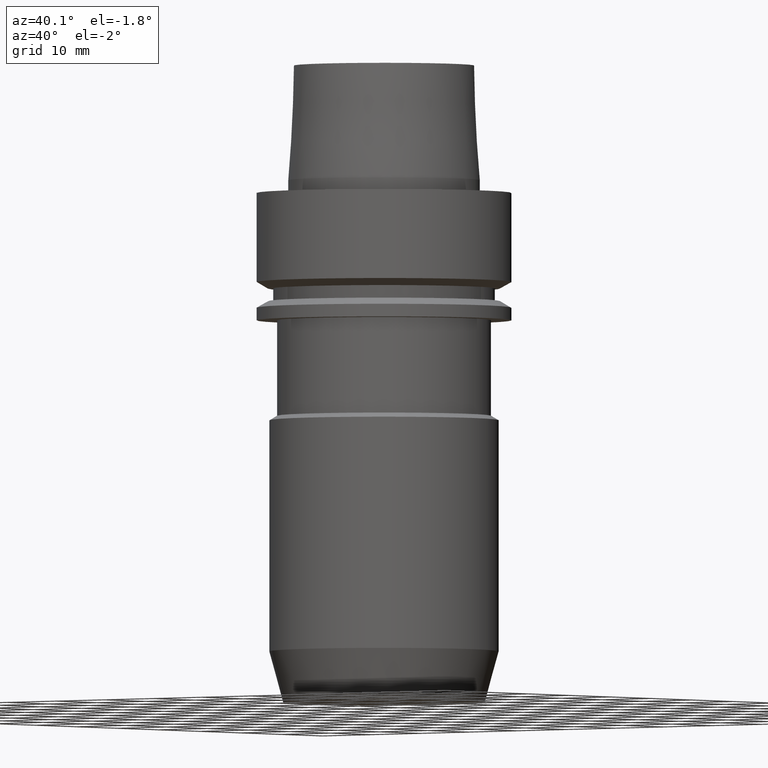
[diagram: clean part render]
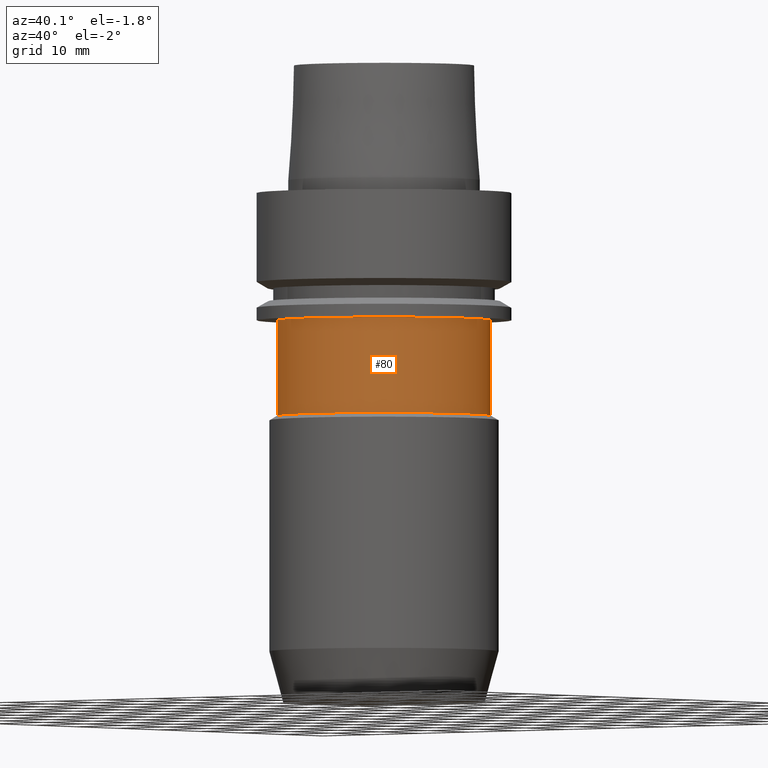
[diagram: same view with one face highlighted and labeled with its STEP entity id]
A machine part, auxiliary view. The second image highlights one B-rep face of the part: STEP entity #80.
In plain terms, the highlighted cylindrical surface (bore or boss wall) has radius 16.8 mm, axis along (0, 0, -1).
Its self-contained STEP definition (entity closure, byte-faithful):
#80=ADVANCED_FACE('',(#107,#108),#109,.T.);
#107=FACE_BOUND('',#156,.T.);
#108=FACE_BOUND('',#157,.T.);
#109=CYLINDRICAL_SURFACE('',#158,16.8);
#156=EDGE_LOOP('',(#215));
#157=EDGE_LOOP('',(#216));
#158=AXIS2_PLACEMENT_3D('',#217,#218,#219);
#215=ORIENTED_EDGE('',*,*,#280,.F.);
#216=ORIENTED_EDGE('',*,*,#279,.T.);
#217=CARTESIAN_POINT('',(1.68388934891111E-015,3.36777869782222E-015,-27.5000000013636));
#218=DIRECTION('',(6.12323399573677E-017,1.22464679914735E-016,-1.0));
#219=DIRECTION('',(-1.23259516440783E-032,1.0,1.22464679914735E-016));
#279=EDGE_CURVE('',#300,#300,#301,.T.);
#280=EDGE_CURVE('',#302,#302,#303,.T.);
#300=VERTEX_POINT('',#332);
#301=CIRCLE('',#333,16.8);
#302=VERTEX_POINT('',#334);
#303=CIRCLE('',#335,16.8);
#332=CARTESIAN_POINT('',(2.14313189867487E-015,16.8,-35.0000000027273));
#333=AXIS2_PLACEMENT_3D('',#369,#370,#371);
#334=CARTESIAN_POINT('',(1.22464679914735E-015,16.8,-20.0));
#335=AXIS2_PLACEMENT_3D('',#372,#373,#374);
#369=CARTESIAN_POINT('',(2.14313189867487E-015,4.28626379734973E-015,-35.0000000027273));
#370=DIRECTION('',(-6.12323399573677E-017,-1.22464679914735E-016,1.0));
#371=DIRECTION('',(-1.23259516440783E-032,1.0,1.22464679914735E-016));
#372=CARTESIAN_POINT('',(1.22464679914735E-015,2.44929359829471E-015,-20.0));
#373=DIRECTION('',(-6.12323399573677E-017,-1.22464679914735E-016,1.0));
#374=DIRECTION('',(-1.23259516440783E-032,1.0,1.22464679914735E-016));